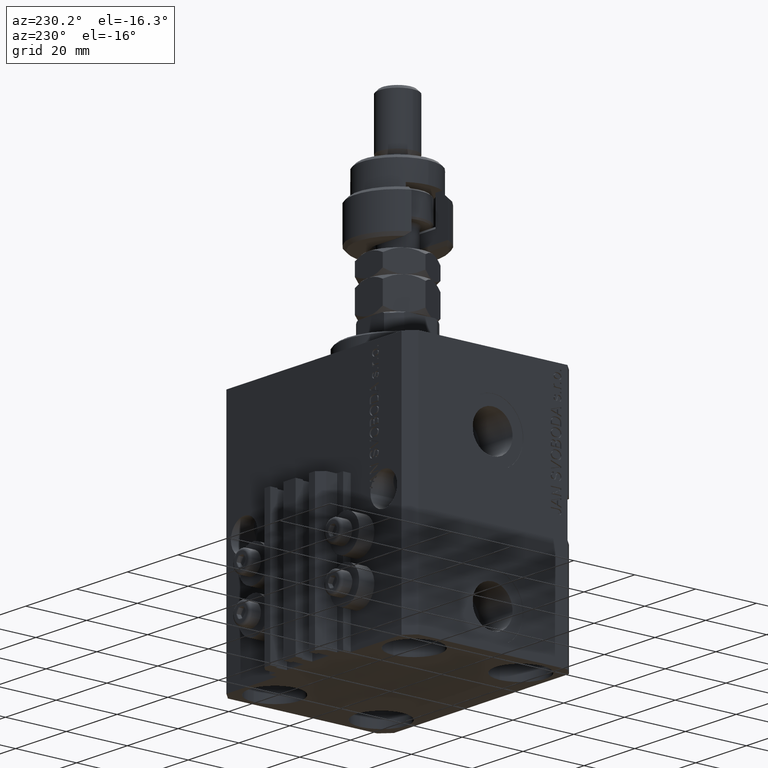
[diagram: clean part render]
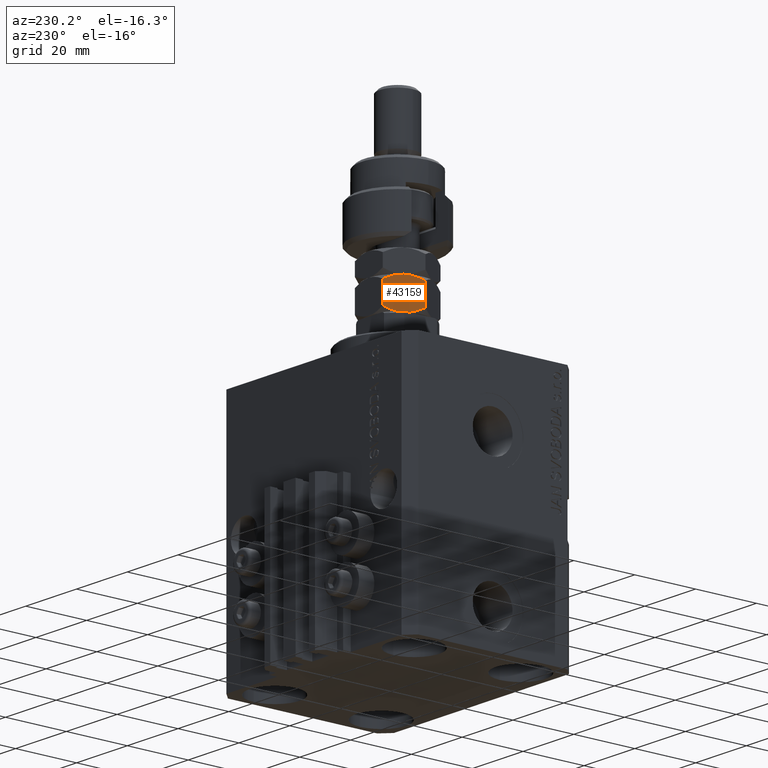
[diagram: same view with one face highlighted and labeled with its STEP entity id]
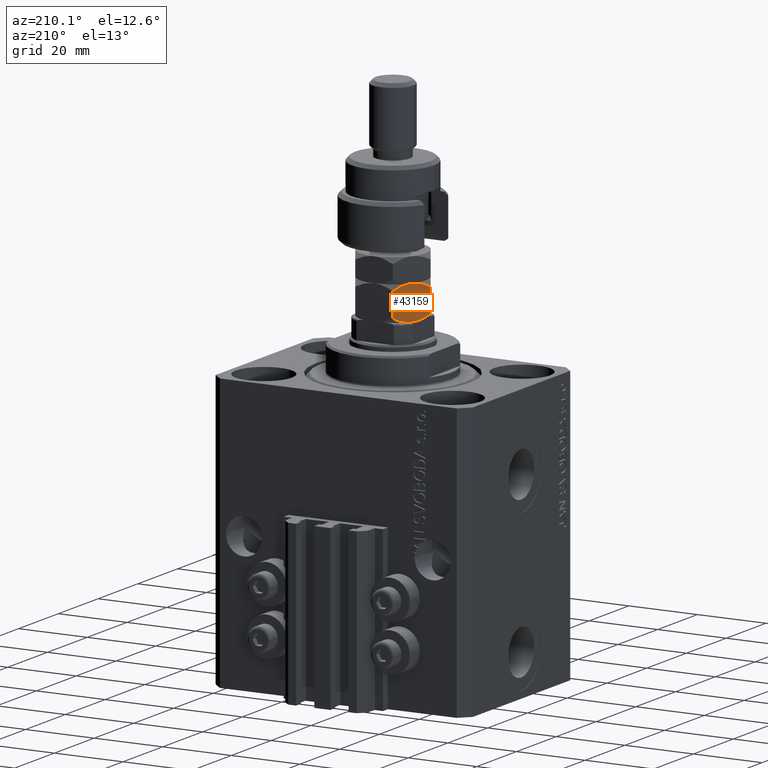
[diagram: same view with one face highlighted and labeled with its STEP entity id]
A machine part, auxiliary view. The second image highlights one B-rep face of the part: STEP entity #43159.
A second angle (auxiliary view) of the same face is appended — the face is thin or edge-on in the first view.
In plain terms, the highlighted planar face has unit normal (0.866, -0.5, 0).
Its self-contained STEP definition (entity closure, byte-faithful):
#41 = CARTESIAN_POINT ( 'NONE',  ( -9.499999999999998224, -5.056260213613243515, 1.255371442758782985 ) ) ;
#473 = CARTESIAN_POINT ( 'NONE',  ( -9.499999999999996447, 0.000000000000000000, 10.00000000000000000 ) ) ;
#1591 = CARTESIAN_POINT ( 'NONE',  ( -9.500000000000000000, 5.484827557301449552, 10.00000000000000000 ) ) ;
#2654 = CARTESIAN_POINT ( 'NONE',  ( -9.500000000000000000, 0.000000000000000000, 0.000000000000000000 ) ) ;
#3016 = EDGE_CURVE ( 'NONE', #45382, #3591, #35475, .T. ) ;
#3591 = VERTEX_POINT ( 'NONE', #27328 ) ;
#4061 = CARTESIAN_POINT ( 'NONE',  ( -9.500000000000000000, -3.734178907538126868, 0.6995073985181277099 ) ) ;
#5130 = ORIENTED_EDGE ( 'NONE', *, *, #13320, .F. ) ;
#5567 = LINE ( 'NONE', #40186, #10710 ) ;
#6177 = CARTESIAN_POINT ( 'NONE',  ( -9.500000000000000000, 4.631112555686345722, 1.042797613795336753 ) ) ;
#7366 = B_SPLINE_CURVE_WITH_KNOTS ( 'NONE', 3,
 ( #18603, #41, #15086, #4061, #38191, #15587, #14575, #34675, #29908, #33921 ),
 .UNSPECIFIED., .F., .F.,
 ( 4, 2, 2, 2, 4 ),
 ( 0.01710995699817097551, 0.01854089553334493934, 0.01997183406851890664, 0.02140277260369287393, 0.02283371113886683776 ),
 .UNSPECIFIED. ) ;
#8381 = EDGE_LOOP ( 'NONE', ( #5130, #9171, #46752, #33126, #32706, #39148 ) ) ;
#9171 = ORIENTED_EDGE ( 'NONE', *, *, #32485, .F. ) ;
#9442 = CARTESIAN_POINT ( 'NONE',  ( -9.500000000000001776, 2.364456443984731759, 0.2797887937521522095 ) ) ;
#10137 = CARTESIAN_POINT ( 'NONE',  ( -9.500000000000000000, -5.484827557301445999, 8.530344885397115107 ) ) ;
#10426 = VERTEX_POINT ( 'NONE', #473 ) ;
#10710 = VECTOR ( 'NONE', #27907, 1000.000000000000000 ) ;
#10749 = CARTESIAN_POINT ( 'NONE',  ( -9.500000000000000000, 0.9476109094485472006, 9.964480694987347675 ) ) ;
#11579 = EDGE_CURVE ( 'NONE', #45382, #10426, #18925, .T. ) ;
#11881 = DIRECTION ( 'NONE',  ( -0.000000000000000000, -0.000000000000000000, -1.000000000000000000 ) ) ;
#12020 = VERTEX_POINT ( 'NONE', #10137 ) ;
#13201 = CARTESIAN_POINT ( 'NONE',  ( -9.500000000000000000, 0.9479236874768390830, 0.03577730758446397152 ) ) ;
#13320 = EDGE_CURVE ( 'NONE', #44817, #40845, #7366, .T. ) ;
#13996 = CARTESIAN_POINT ( 'NONE',  ( -9.500000000000003553, 2.368438208135732914, 9.719066414435319601 ) ) ;
#14494 = CARTESIAN_POINT ( 'NONE',  ( -9.500000000000000000, 3.284755346118642727, 9.457750254881881702 ) ) ;
#14575 = CARTESIAN_POINT ( 'NONE',  ( -9.500000000000001776, -1.900126426538963242, 0.1767061760391781533 ) ) ;
#15086 = CARTESIAN_POINT ( 'NONE',  ( -9.500000000000001776, -4.619321229330175527, 1.055756139598138077 ) ) ;
#15587 = CARTESIAN_POINT ( 'NONE',  ( -9.500000000000001776, -2.368438208135733358, 0.2809335855646786784 ) ) ;
#16492 = DIRECTION ( 'NONE',  ( 1.000000000000000000, 0.000000000000000000, -0.000000000000000000 ) ) ;
#17501 = CARTESIAN_POINT ( 'NONE',  ( -9.500000000000000000, -5.484827557301445999, 1.469655114602884893 ) ) ;
#17802 = EDGE_CURVE ( 'NONE', #40845, #3591, #28660, .T. ) ;
#18264 = CARTESIAN_POINT ( 'NONE',  ( -9.499999999999998224, 4.619321229330174639, 8.944243860401860147 ) ) ;
#18311 = CARTESIAN_POINT ( 'NONE',  ( -9.500000000000000000, 5.484827557301450440, 8.530344885397113330 ) ) ;
#18603 = CARTESIAN_POINT ( 'NONE',  ( -9.500000000000000000, -5.484827557301445999, 1.469655114602884893 ) ) ;
#18656 = CARTESIAN_POINT ( 'NONE',  ( -9.499999999999996447, 0.000000000000000000, 10.00000000000000000 ) ) ;
#18925 = B_SPLINE_CURVE_WITH_KNOTS ( 'NONE', 3,
 ( #33091, #30077, #18264, #33585, #14494, #13996, #33843, #10749, #29827, #29334 ),
 .UNSPECIFIED., .F., .F.,
 ( 4, 2, 2, 2, 4 ),
 ( 0.01710995699817097898, 0.01854089553334494628, 0.01997183406851891010, 0.02140277260369287740, 0.02283371113886684470 ),
 .UNSPECIFIED. ) ;
#19398 = EDGE_CURVE ( 'NONE', #10426, #12020, #34512, .T. ) ;
#19891 = VECTOR ( 'NONE', #11881, 1000.000000000000000 ) ;
#20012 = DIRECTION ( 'NONE',  ( -0.000000000000000000, 0.000000000000000000, -1.000000000000000000 ) ) ;
#20396 = CARTESIAN_POINT ( 'NONE',  ( -9.500000000000001776, -2.364456443984731315, 9.720211206247848068 ) ) ;
#23675 = CARTESIAN_POINT ( 'NONE',  ( -9.500000000000003553, -3.751526451643773630, 9.324617500212356802 ) ) ;
#25738 = CARTESIAN_POINT ( 'NONE',  ( -9.500000000000001776, 3.751526451643775406, 0.6753824997876441971 ) ) ;
#26441 = CARTESIAN_POINT ( 'NONE',  ( -9.500000000000000000, -1.891038971533061108, 9.824850495500340841 ) ) ;
#27328 = CARTESIAN_POINT ( 'NONE',  ( -9.500000000000000000, 5.484827557301450440, 1.469655114602887114 ) ) ;
#27907 = DIRECTION ( 'NONE',  ( -0.000000000000000000, -0.000000000000000000, -1.000000000000000000 ) ) ;
#28045 = PLANE ( 'NONE',  #49162 ) ;
#28660 = B_SPLINE_CURVE_WITH_KNOTS ( 'NONE', 3,
 ( #2654, #41048, #13201, #29020, #9442, #25738, #6177, #29503 ),
 .UNSPECIFIED., .F., .F.,
 ( 4, 2, 2, 4 ),
 ( 0.02283371113886683776, 0.02427012866641926891, 0.02570654619397170007, 0.02857938124907656238 ),
 .UNSPECIFIED. ) ;
#29020 = CARTESIAN_POINT ( 'NONE',  ( -9.499999999999998224, 1.891038971533059110, 0.1751495044996551897 ) ) ;
#29334 = CARTESIAN_POINT ( 'NONE',  ( -9.499999999999996447, 0.000000000000000000, 10.00000000000000000 ) ) ;
#29503 = CARTESIAN_POINT ( 'NONE',  ( -9.500000000000000000, 5.484827557301450440, 1.469655114602887114 ) ) ;
#29827 = CARTESIAN_POINT ( 'NONE',  ( -9.500000000000003553, 0.4729811324588416022, 10.00000000000000178 ) ) ;
#29908 = CARTESIAN_POINT ( 'NONE',  ( -9.500000000000001776, -0.4729811324588428234, 5.421010862427519705E-17 ) ) ;
#30077 = CARTESIAN_POINT ( 'NONE',  ( -9.499999999999998224, 5.056260213613249732, 8.744628557241215461 ) ) ;
#32052 = CARTESIAN_POINT ( 'NONE',  ( -9.500000000000000000, 5.484827557301449552, 10.00000000000000000 ) ) ;
#32485 = EDGE_CURVE ( 'NONE', #12020, #44817, #5567, .T. ) ;
#32706 = ORIENTED_EDGE ( 'NONE', *, *, #3016, .T. ) ;
#33091 = CARTESIAN_POINT ( 'NONE',  ( -9.500000000000000000, 5.484827557301450440, 8.530344885397113330 ) ) ;
#33126 = ORIENTED_EDGE ( 'NONE', *, *, #11579, .F. ) ;
#33585 = CARTESIAN_POINT ( 'NONE',  ( -9.499999999999994671, 3.734178907538126868, 9.300492601481865407 ) ) ;
#33843 = CARTESIAN_POINT ( 'NONE',  ( -9.500000000000001776, 1.900126426538962798, 9.823293823960822735 ) ) ;
#33921 = CARTESIAN_POINT ( 'NONE',  ( -9.500000000000000000, 0.000000000000000000, 0.000000000000000000 ) ) ;
#33975 = CARTESIAN_POINT ( 'NONE',  ( -9.499999999999998224, -0.4747921536566078182, 9.999999999999998224 ) ) ;
#34512 = B_SPLINE_CURVE_WITH_KNOTS ( 'NONE', 3,
 ( #18656, #33975, #49282, #26441, #20396, #23675, #39239, #35716 ),
 .UNSPECIFIED., .F., .F.,
 ( 4, 2, 2, 4 ),
 ( 0.02283371113886684470, 0.02427012866641927585, 0.02570654619397170354, 0.02857938124907656238 ),
 .UNSPECIFIED. ) ;
#34675 = CARTESIAN_POINT ( 'NONE',  ( -9.500000000000001776, -0.9476109094485490880, 0.03551930501265149198 ) ) ;
#35475 = LINE ( 'NONE', #1591, #19891 ) ;
#35716 = CARTESIAN_POINT ( 'NONE',  ( -9.500000000000000000, -5.484827557301445999, 8.530344885397115107 ) ) ;
#38191 = CARTESIAN_POINT ( 'NONE',  ( -9.500000000000001776, -3.284755346118642727, 0.5422497451181170769 ) ) ;
#39148 = ORIENTED_EDGE ( 'NONE', *, *, #17802, .F. ) ;
#39239 = CARTESIAN_POINT ( 'NONE',  ( -9.500000000000001776, -4.631112555686342169, 8.957202386204667022 ) ) ;
#40186 = CARTESIAN_POINT ( 'NONE',  ( -9.500000000000000000, -5.484827557301445999, 10.00000000000000000 ) ) ;
#40845 = VERTEX_POINT ( 'NONE', #46843 ) ;
#41048 = CARTESIAN_POINT ( 'NONE',  ( -9.500000000000000000, 0.4747921536566064860, -5.336307567702092136E-17 ) ) ;
#43159 = ADVANCED_FACE ( 'NONE', ( #43863 ), #28045, .F. ) ;
#43863 = FACE_OUTER_BOUND ( 'NONE', #8381, .T. ) ;
#44817 = VERTEX_POINT ( 'NONE', #17501 ) ;
#45382 = VERTEX_POINT ( 'NONE', #18311 ) ;
#46752 = ORIENTED_EDGE ( 'NONE', *, *, #19398, .F. ) ;
#46843 = CARTESIAN_POINT ( 'NONE',  ( -9.500000000000000000, 0.000000000000000000, 0.000000000000000000 ) ) ;
#49162 = AXIS2_PLACEMENT_3D ( 'NONE', #32052, #16492, #20012 ) ;
#49282 = CARTESIAN_POINT ( 'NONE',  ( -9.500000000000001776, -0.9479236874768413035, 9.964222692415534155 ) ) ;